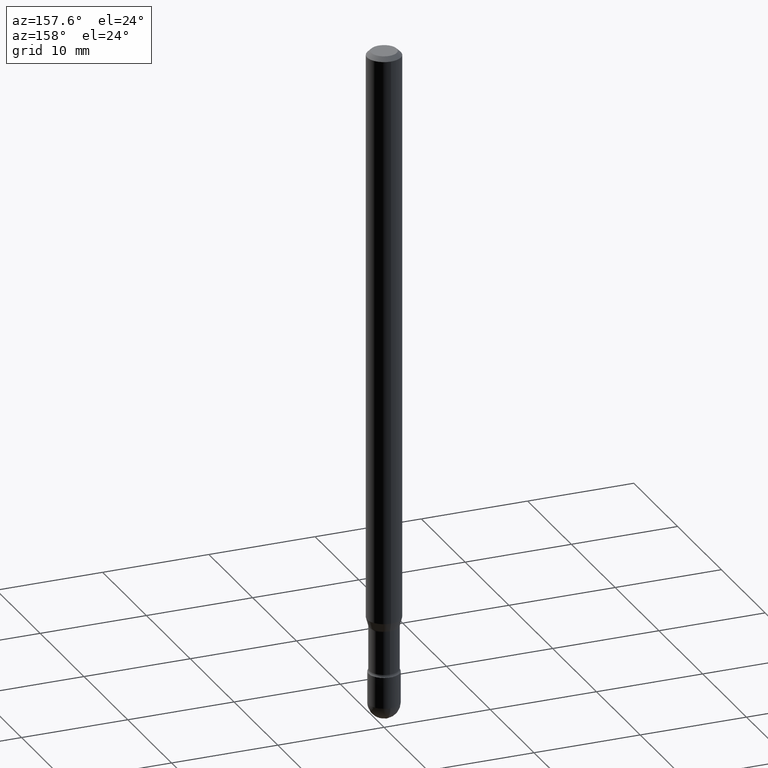
[diagram: clean part render]
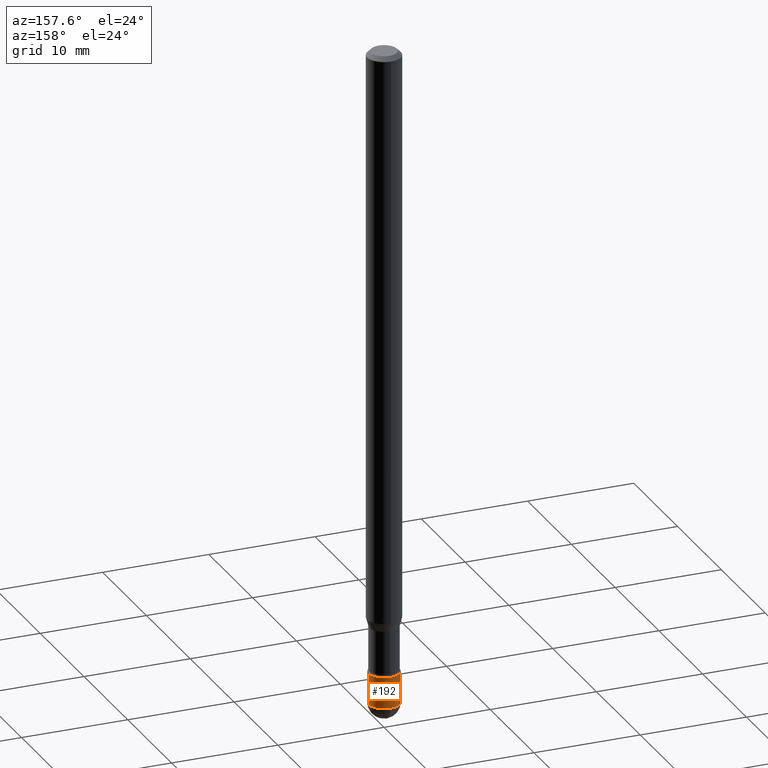
[diagram: same view with one face highlighted and labeled with its STEP entity id]
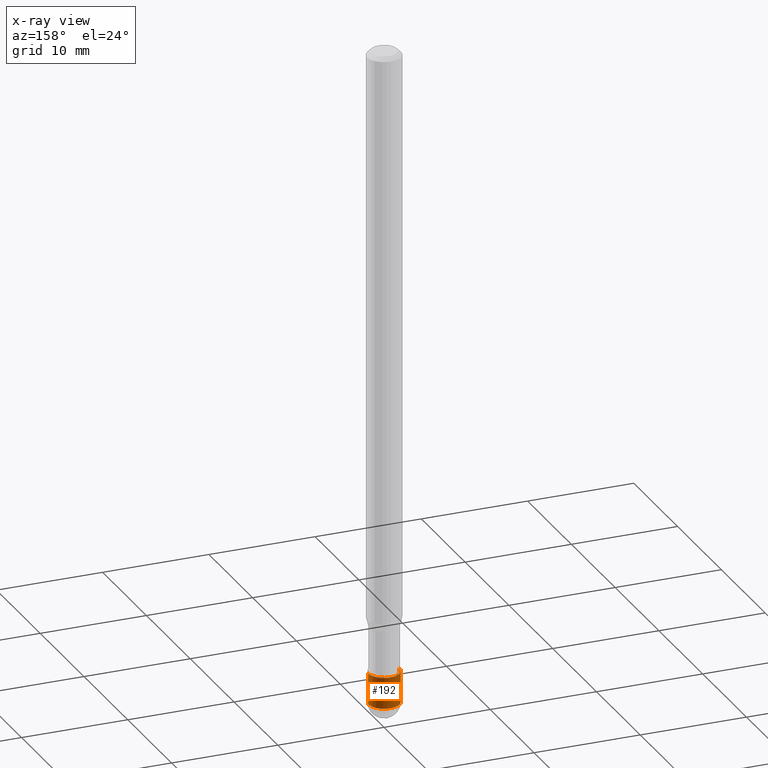
[diagram: x-ray of the same camera — body ghosted, the highlighted face saturated]
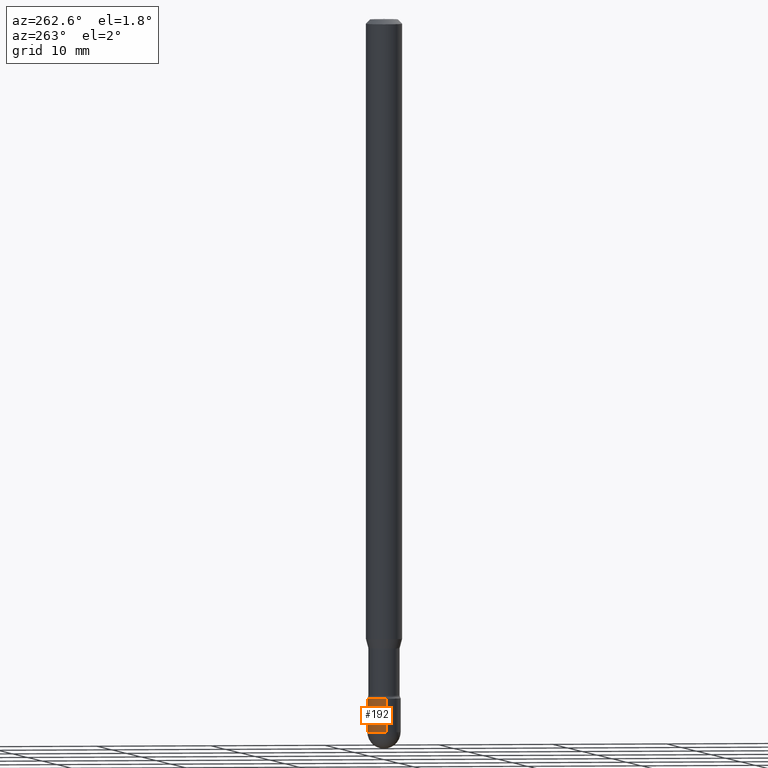
[diagram: same view with one face highlighted and labeled with its STEP entity id]
A machine part, auxiliary view. The second image highlights one B-rep face of the part: STEP entity #192.
The next image is the same camera in x-ray: the body ghosted, the highlighted face saturated — about 0% of this face is hidden behind the body in this view.
A second angle (auxiliary view) of the same face is appended — the face is thin or edge-on in the first view.
In plain terms, the highlighted cylindrical surface (edge-blend (fillet) strip) has radius 1.4605 mm, axis along (-0, 0, 1).
Its self-contained STEP definition (entity closure, byte-faithful):
#4 = DIRECTION ( 'NONE',  ( 1.000000000000000000, -6.982962677686265922E-15, 4.876176775795935232E-29 ) ) ;
#13 = CARTESIAN_POINT ( 'NONE',  ( 5.973057559107196227E-29, -8.527943170124383355E-15, -2.442499999999999893 ) ) ;
#14 = EDGE_CURVE ( 'NONE', #207, #251, #558, .T. ) ;
#15 = CARTESIAN_POINT ( 'NONE',  ( 0.05750000000000000250, -8.727830476773152219E-15, -2.442499999999999893 ) ) ;
#26 = AXIS2_PLACEMENT_3D ( 'NONE', #353, #435, #544 ) ;
#27 = ORIENTED_EDGE ( 'NONE', *, *, #14, .T. ) ;
#44 = CYLINDRICAL_SURFACE ( 'NONE', #79, 0.05750000000000000250 ) ;
#51 = DIRECTION ( 'NONE',  ( 1.000000000000000000, -6.982962677686273810E-15, 0.000000000000000000 ) ) ;
#79 = AXIS2_PLACEMENT_3D ( 'NONE', #317, #360, #4 ) ;
#86 = CARTESIAN_POINT ( 'NONE',  ( 4.015203539670203189E-16, 0.05749999999999150929, -2.442500000000000338 ) ) ;
#112 = ORIENTED_EDGE ( 'NONE', *, *, #316, .T. ) ;
#133 = DIRECTION ( 'NONE',  ( 1.000000000000000000, -6.982962677686273810E-15, 0.000000000000000000 ) ) ;
#162 = VERTEX_POINT ( 'NONE', #523 ) ;
#188 = DIRECTION ( 'NONE',  ( -2.445468806185136597E-29, 3.491481338843145583E-15, 1.000000000000000000 ) ) ;
#192 = ADVANCED_FACE ( 'NONE', ( #516 ), #44, .T. ) ;
#207 = VERTEX_POINT ( 'NONE', #86 ) ;
#210 = EDGE_CURVE ( 'NONE', #304, #241, #528, .T. ) ;
#237 = CIRCLE ( 'NONE', #276, 0.05750000000000000250 ) ;
#241 = VERTEX_POINT ( 'NONE', #438 ) ;
#243 = ORIENTED_EDGE ( 'NONE', *, *, #270, .F. ) ;
#251 = VERTEX_POINT ( 'NONE', #269 ) ;
#255 = VECTOR ( 'NONE', #551, 39.37007874015748143 ) ;
#269 = CARTESIAN_POINT ( 'NONE',  ( -0.05750000000000000250, -7.917748049744133834E-15, -2.442499999999999893 ) ) ;
#270 = EDGE_CURVE ( 'NONE', #241, #162, #444, .T. ) ;
#276 = AXIS2_PLACEMENT_3D ( 'NONE', #13, #188, #51 ) ;
#304 = VERTEX_POINT ( 'NONE', #15 ) ;
#305 = VECTOR ( 'NONE', #442, 39.37007874015748143 ) ;
#316 = EDGE_CURVE ( 'NONE', #304, #207, #237, .T. ) ;
#317 = CARTESIAN_POINT ( 'NONE',  ( 0.000000000000000000, 0.000000000000000000, 0.000000000000000000 ) ) ;
#324 = EDGE_LOOP ( 'NONE', ( #27, #390, #243, #377, #112 ) ) ;
#353 = CARTESIAN_POINT ( 'NONE',  ( 5.973057559107196227E-29, -8.527943170124383355E-15, -2.442499999999999893 ) ) ;
#360 = DIRECTION ( 'NONE',  ( -2.445468806185136597E-29, 3.491481338843145583E-15, 1.000000000000000000 ) ) ;
#377 = ORIENTED_EDGE ( 'NONE', *, *, #210, .F. ) ;
#381 = CARTESIAN_POINT ( 'NONE',  ( -0.05750000000000000250, 4.085620730620576246E-16, -2.828387676896570712E-30 ) ) ;
#390 = ORIENTED_EDGE ( 'NONE', *, *, #419, .T. ) ;
#419 = EDGE_CURVE ( 'NONE', #251, #162, #506, .T. ) ;
#435 = DIRECTION ( 'NONE',  ( -2.445468806185136597E-29, 3.491481338843145583E-15, 1.000000000000000000 ) ) ;
#438 = CARTESIAN_POINT ( 'NONE',  ( 0.05750000000000000250, -8.526197429454961062E-15, -2.326999999999999957 ) ) ;
#440 = DIRECTION ( 'NONE',  ( -2.445468806185136597E-29, 3.491481338843145583E-15, 1.000000000000000000 ) ) ;
#442 = DIRECTION ( 'NONE',  ( -2.445468806185136877E-29, 3.491481338843145188E-15, 1.000000000000000000 ) ) ;
#444 = CIRCLE ( 'NONE', #517, 0.05750000000000000250 ) ;
#477 = CARTESIAN_POINT ( 'NONE',  ( 0.05750000000000000250, -4.015203539669603161E-16, 2.803801646082662941E-30 ) ) ;
#506 = LINE ( 'NONE', #381, #255 ) ;
#516 = FACE_OUTER_BOUND ( 'NONE', #324, .T. ) ;
#517 = AXIS2_PLACEMENT_3D ( 'NONE', #521, #440, #133 ) ;
#521 = CARTESIAN_POINT ( 'NONE',  ( 5.690605911992812897E-29, -8.124677075487999464E-15, -2.326999999999999957 ) ) ;
#523 = CARTESIAN_POINT ( 'NONE',  ( -0.05750000000000000250, -7.917748049744133834E-15, -2.326999999999999957 ) ) ;
#528 = LINE ( 'NONE', #477, #305 ) ;
#544 = DIRECTION ( 'NONE',  ( 1.000000000000000000, -6.982962677686273810E-15, 0.000000000000000000 ) ) ;
#551 = DIRECTION ( 'NONE',  ( -2.445468806185136877E-29, 3.491481338843145188E-15, 1.000000000000000000 ) ) ;
#558 = CIRCLE ( 'NONE', #26, 0.05750000000000000250 ) ;